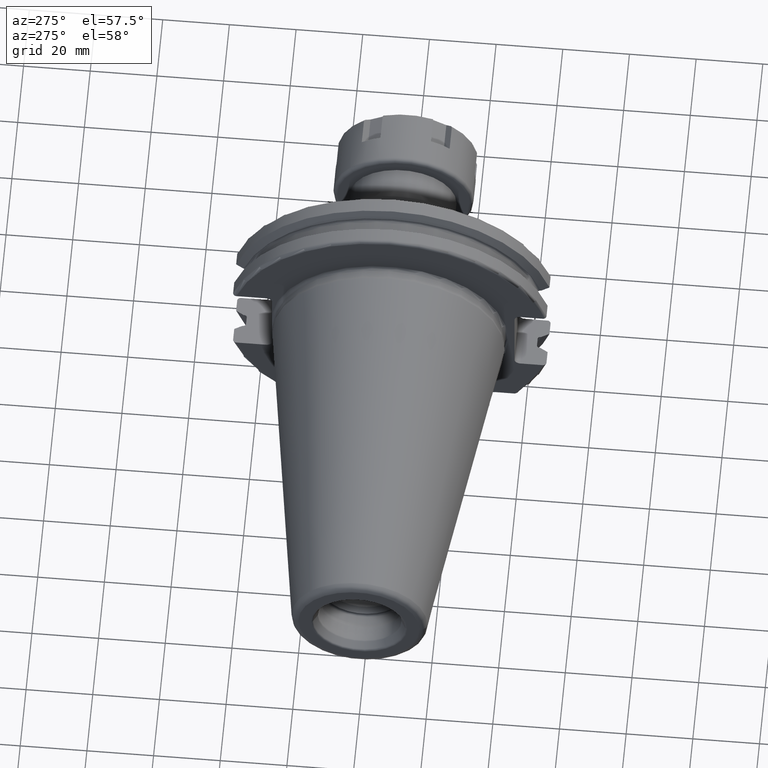
[diagram: clean part render]
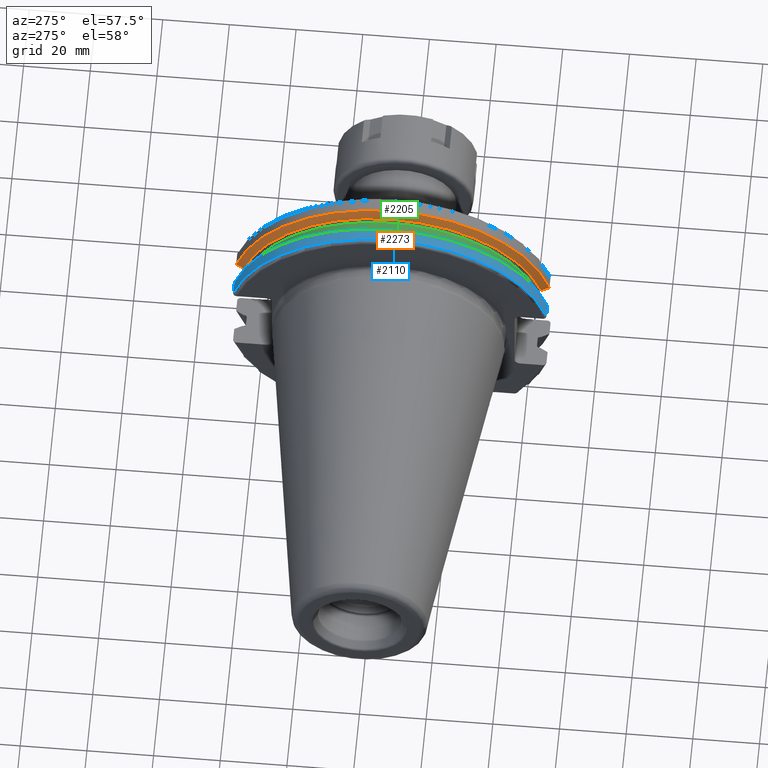
[diagram: same view with three faces highlighted in distinct colors, each labeled with its STEP entity id]
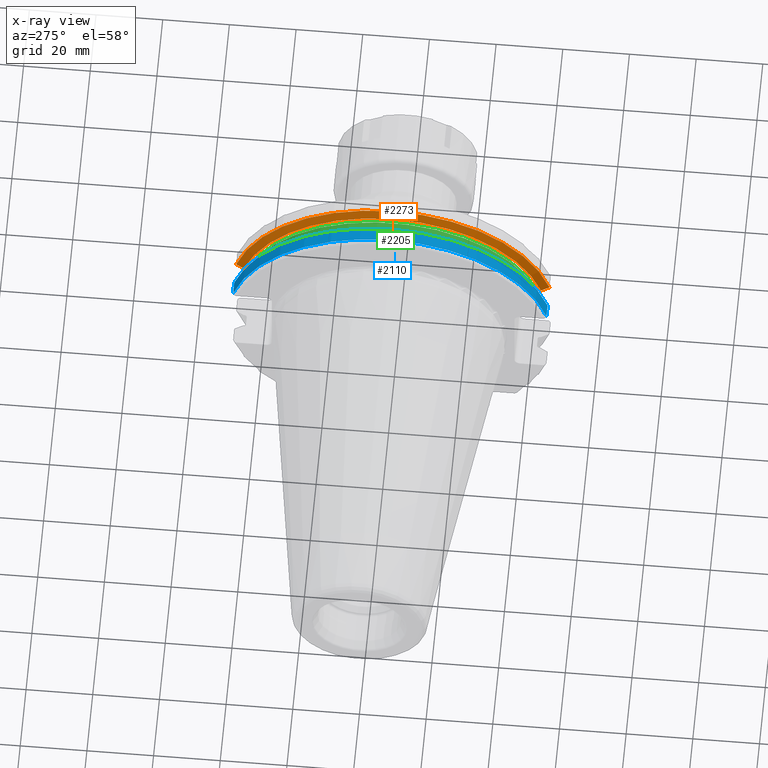
[diagram: x-ray of the same camera — body ghosted, the three highlighted faces saturated]
A machine part, auxiliary view with three faces highlighted in distinct colors.
The next image is the same camera in x-ray (body ghosted, the three faces saturated) — at least one of them is partly hidden behind the body in this view.
Their STEP definitions:

[orange] entity #2273 — the highlighted conical surface has half-angle 60 deg.
#420=CARTESIAN_POINT('',(1.441537838583E1,0.E0,0.E0));
#421=DIRECTION('',(1.E0,0.E0,0.E0));
#422=DIRECTION('',(0.E0,9.643354064066E-1,2.646832521159E-1));
#423=AXIS2_PLACEMENT_3D('',#420,#421,#422);
#584=CARTESIAN_POINT('',(1.441537838583E1,4.699929686974E1,1.29E1));
#585=CARTESIAN_POINT('',(1.426451908496E1,4.672833723043E1,1.29E1));
#586=CARTESIAN_POINT('',(1.396501135619E1,4.619006057421E1,1.29E1));
#587=CARTESIAN_POINT('',(1.352242021955E1,4.539363402665E1,1.29E1));
#588=CARTESIAN_POINT('',(1.323173924582E1,4.486988275438E1,1.29E1));
#589=CARTESIAN_POINT('',(1.30875E1,4.460981716077E1,1.29E1));
#591=CARTESIAN_POINT('',(1.30875E1,-4.460981716077E1,1.29E1));
#592=CARTESIAN_POINT('',(1.323171622645E1,-4.486984125009E1,1.29E1));
#593=CARTESIAN_POINT('',(1.352236645045E1,-4.539353719098E1,1.29E1));
#594=CARTESIAN_POINT('',(1.396495664446E1,-4.618996220278E1,1.29E1));
#595=CARTESIAN_POINT('',(1.426449561388E1,-4.672829507383E1,1.29E1));
#596=CARTESIAN_POINT('',(1.441537838583E1,-4.699929686974E1,1.29E1));
#598=CARTESIAN_POINT('',(1.30875E1,0.E0,0.E0));
#599=DIRECTION('',(1.E0,0.E0,0.E0));
#600=DIRECTION('',(0.E0,9.606411165078E-1,2.777924499957E-1));
#601=AXIS2_PLACEMENT_3D('',#598,#599,#600);
#1414=CARTESIAN_POINT('',(1.30875E1,4.460981716077E1,1.29E1));
#1415=VERTEX_POINT('',#1414);
#1424=CARTESIAN_POINT('',(1.30875E1,-4.460981716077E1,1.29E1));
#1425=VERTEX_POINT('',#1424);
#1426=VERTEX_POINT('',#584);
#1427=VERTEX_POINT('',#596);
#2262=CARTESIAN_POINT('',(1.375143919291E1,0.E0,0.E0));
#2263=DIRECTION('',(1.E0,0.E0,0.E0));
#2264=DIRECTION('',(0.E0,-1.E0,0.E0));
#2265=AXIS2_PLACEMENT_3D('',#2262,#2263,#2264);
#2266=CONICAL_SURFACE('',#2265,4.758752358474E1,6.E1);
#2267=ORIENTED_EDGE('',*,*,#2064,.F.);
#2268=ORIENTED_EDGE('',*,*,#2119,.T.);
#2269=ORIENTED_EDGE('',*,*,#2017,.F.);
#2270=ORIENTED_EDGE('',*,*,#2225,.F.);
#2271=EDGE_LOOP('',(#2267,#2268,#2269,#2270));
#2272=FACE_OUTER_BOUND('',#2271,.F.);
#2273=ADVANCED_FACE('',(#2272),#2266,.T.);
#424=CIRCLE('',#423,4.87375E1);
#590=B_SPLINE_CURVE_WITH_KNOTS('',3,(#584,#585,#586,#587,#588,#589),
.UNSPECIFIED.,.F.,.F.,(4,1,1,4),(0.E0,3.333333333333E-1,6.666666666667E-1,1.E0),
.UNSPECIFIED.);
#597=B_SPLINE_CURVE_WITH_KNOTS('',3,(#591,#592,#593,#594,#595,#596),
.UNSPECIFIED.,.F.,.F.,(4,1,1,4),(0.E0,3.333333333333E-1,6.666666666667E-1,1.E0),
.UNSPECIFIED.);
#602=CIRCLE('',#601,4.643754716948E1);
#2017=EDGE_CURVE('',#1425,#1427,#597,.T.);
#2064=EDGE_CURVE('',#1426,#1415,#590,.T.);
#2119=EDGE_CURVE('',#1426,#1427,#424,.T.);
#2225=EDGE_CURVE('',#1415,#1425,#602,.T.);

[blue] entity #2110 — the highlighted cylindrical surface (partial cylindrical patch) has radius 48.7375 mm, axis along (1, 0, 0).
#347=CARTESIAN_POINT('',(4.2E0,0.E0,0.E0));
#348=DIRECTION('',(1.E0,0.E0,0.E0));
#349=DIRECTION('',(0.E0,9.643354064066E-1,2.646832521159E-1));
#350=AXIS2_PLACEMENT_3D('',#347,#348,#349);
#394=DIRECTION('',(1.E0,0.E0,0.E0));
#395=VECTOR('',#394,3.734621614173E0);
#396=CARTESIAN_POINT('',(4.2E0,4.699929686974E1,1.29E1));
#397=LINE('',#396,#395);
#398=CARTESIAN_POINT('',(7.934621614173E0,0.E0,0.E0));
#399=DIRECTION('',(1.E0,0.E0,0.E0));
#400=DIRECTION('',(0.E0,9.643354064066E-1,2.646832521159E-1));
#401=AXIS2_PLACEMENT_3D('',#398,#399,#400);
#403=DIRECTION('',(1.E0,0.E0,0.E0));
#404=VECTOR('',#403,3.734621614173E0);
#405=CARTESIAN_POINT('',(4.2E0,-4.699929686974E1,1.29E1));
#406=LINE('',#405,#404);
#425=CARTESIAN_POINT('',(7.934621614173E0,4.699929686974E1,1.29E1));
#437=CARTESIAN_POINT('',(7.934621614173E0,-4.699929686974E1,1.29E1));
#1428=VERTEX_POINT('',#425);
#1429=VERTEX_POINT('',#437);
#1440=CARTESIAN_POINT('',(4.2E0,4.699929686974E1,1.29E1));
#1441=VERTEX_POINT('',#1440);
#1444=CARTESIAN_POINT('',(4.2E0,-4.699929686974E1,1.29E1));
#1445=VERTEX_POINT('',#1444);
#2098=CARTESIAN_POINT('',(-1.076325E2,0.E0,0.E0));
#2099=DIRECTION('',(1.E0,0.E0,0.E0));
#2100=DIRECTION('',(0.E0,-1.E0,0.E0));
#2101=AXIS2_PLACEMENT_3D('',#2098,#2099,#2100);
#2102=CYLINDRICAL_SURFACE('',#2101,4.87375E1);
#2103=ORIENTED_EDGE('',*,*,#2078,.T.);
#2105=ORIENTED_EDGE('',*,*,#2104,.T.);
#2106=ORIENTED_EDGE('',*,*,#2003,.F.);
#2107=ORIENTED_EDGE('',*,*,#2046,.F.);
#2108=EDGE_LOOP('',(#2103,#2105,#2106,#2107));
#2109=FACE_OUTER_BOUND('',#2108,.F.);
#2110=ADVANCED_FACE('',(#2109),#2102,.T.);
#351=CIRCLE('',#350,4.87375E1);
#402=CIRCLE('',#401,4.87375E1);
#2003=EDGE_CURVE('',#1445,#1429,#406,.T.);
#2046=EDGE_CURVE('',#1441,#1445,#351,.T.);
#2078=EDGE_CURVE('',#1441,#1428,#397,.T.);
#2104=EDGE_CURVE('',#1428,#1429,#402,.T.);

[green] entity #2205 — the highlighted cylindrical surface (partial cylindrical patch) has radius 45.5 mm, axis along (1, 0, 0).
#478=CARTESIAN_POINT('',(1.00125E1,4.363301502303E1,1.29E1));
#498=CARTESIAN_POINT('',(1.00125E1,-4.363301502303E1,1.29E1));
#505=DIRECTION('',(1.E0,0.E0,0.E0));
#506=VECTOR('',#505,2.325E0);
#507=CARTESIAN_POINT('',(1.00125E1,4.363301502303E1,1.29E1));
#508=LINE('',#507,#506);
#509=DIRECTION('',(1.E0,0.E0,0.E0));
#510=VECTOR('',#509,2.325E0);
#511=CARTESIAN_POINT('',(1.00125E1,-4.363301502303E1,1.29E1));
#512=LINE('',#511,#510);
#513=CARTESIAN_POINT('',(1.00125E1,0.E0,0.E0));
#514=DIRECTION('',(1.E0,0.E0,0.E0));
#515=DIRECTION('',(0.E0,9.589673631435E-1,2.835164835165E-1));
#516=AXIS2_PLACEMENT_3D('',#513,#514,#515);
#540=CARTESIAN_POINT('',(1.23375E1,0.E0,0.E0));
#541=DIRECTION('',(1.E0,0.E0,0.E0));
#542=DIRECTION('',(0.E0,9.589673631435E-1,2.835164835165E-1));
#543=AXIS2_PLACEMENT_3D('',#540,#541,#542);
#1406=VERTEX_POINT('',#478);
#1407=VERTEX_POINT('',#498);
#1408=CARTESIAN_POINT('',(1.23375E1,4.363301502303E1,1.29E1));
#1409=VERTEX_POINT('',#1408);
#1410=CARTESIAN_POINT('',(1.23375E1,-4.363301502303E1,1.29E1));
#1411=VERTEX_POINT('',#1410);
#2193=CARTESIAN_POINT('',(7.325E0,0.E0,0.E0));
#2194=DIRECTION('',(1.E0,0.E0,0.E0));
#2195=DIRECTION('',(0.E0,-1.E0,0.E0));
#2196=AXIS2_PLACEMENT_3D('',#2193,#2194,#2195);
#2197=CYLINDRICAL_SURFACE('',#2196,4.55E1);
#2198=ORIENTED_EDGE('',*,*,#2070,.T.);
#2200=ORIENTED_EDGE('',*,*,#2199,.T.);
#2201=ORIENTED_EDGE('',*,*,#2011,.F.);
#2202=ORIENTED_EDGE('',*,*,#2186,.F.);
#2203=EDGE_LOOP('',(#2198,#2200,#2201,#2202));
#2204=FACE_OUTER_BOUND('',#2203,.F.);
#2205=ADVANCED_FACE('',(#2204),#2197,.T.);
#517=CIRCLE('',#516,4.55E1);
#544=CIRCLE('',#543,4.55E1);
#2011=EDGE_CURVE('',#1407,#1411,#512,.T.);
#2070=EDGE_CURVE('',#1406,#1409,#508,.T.);
#2186=EDGE_CURVE('',#1406,#1407,#517,.T.);
#2199=EDGE_CURVE('',#1409,#1411,#544,.T.);